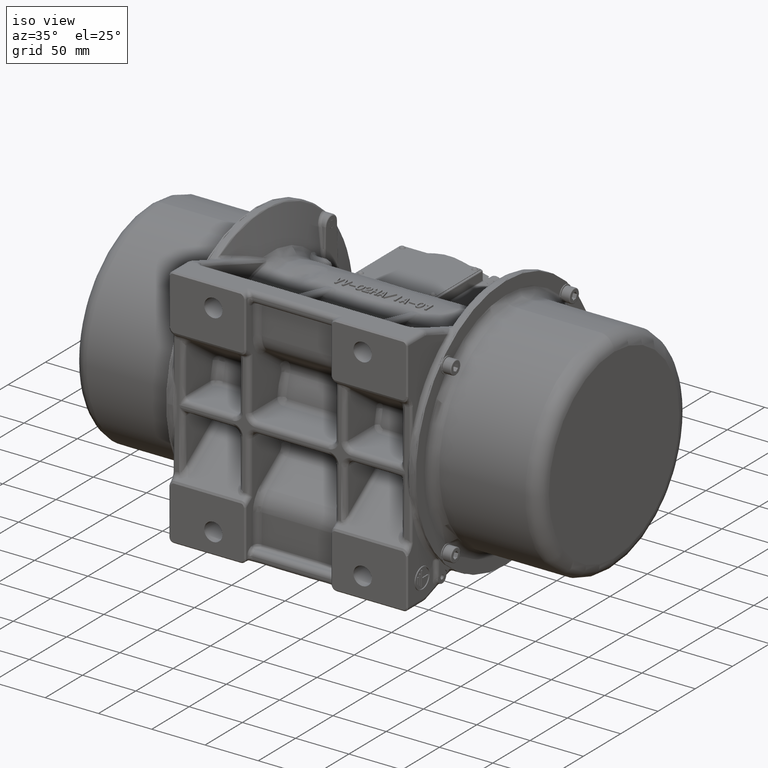
[diagram: clean part render]
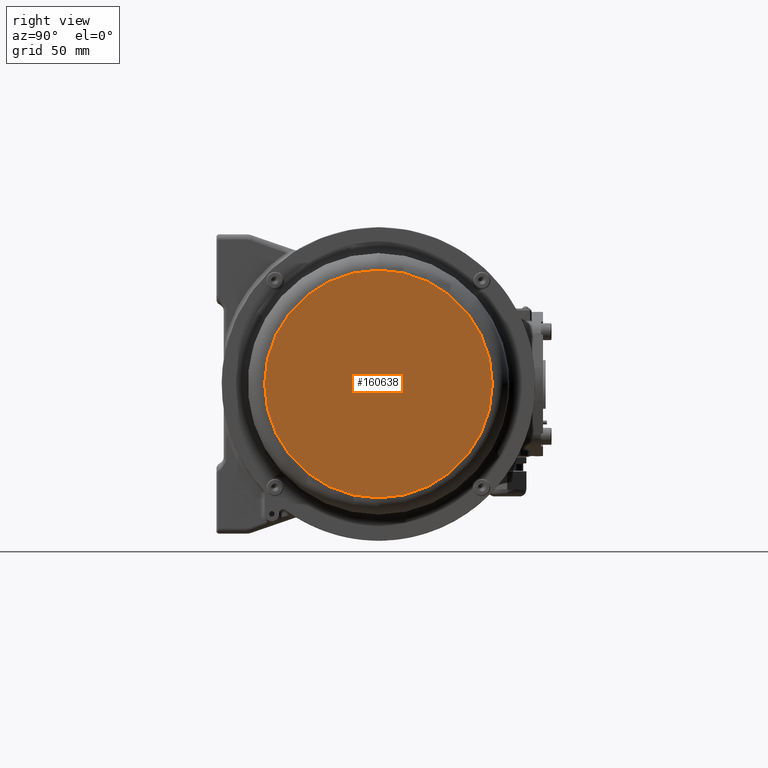
[diagram: tour spotlight — one face highlighted and labeled with its STEP entity id]
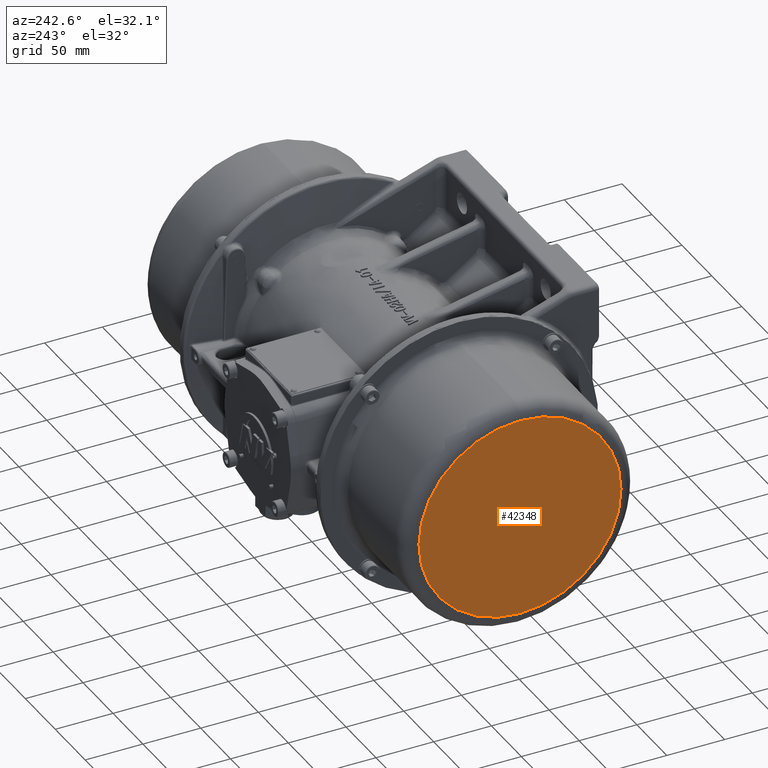
[diagram: tour spotlight — one face highlighted and labeled with its STEP entity id]
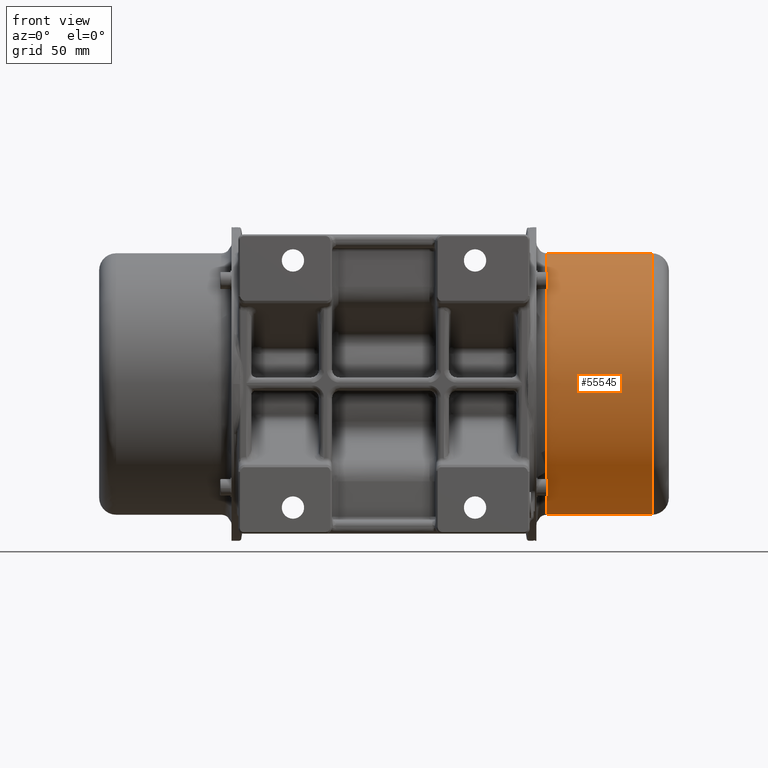
[diagram: tour spotlight — one face highlighted and labeled with its STEP entity id]
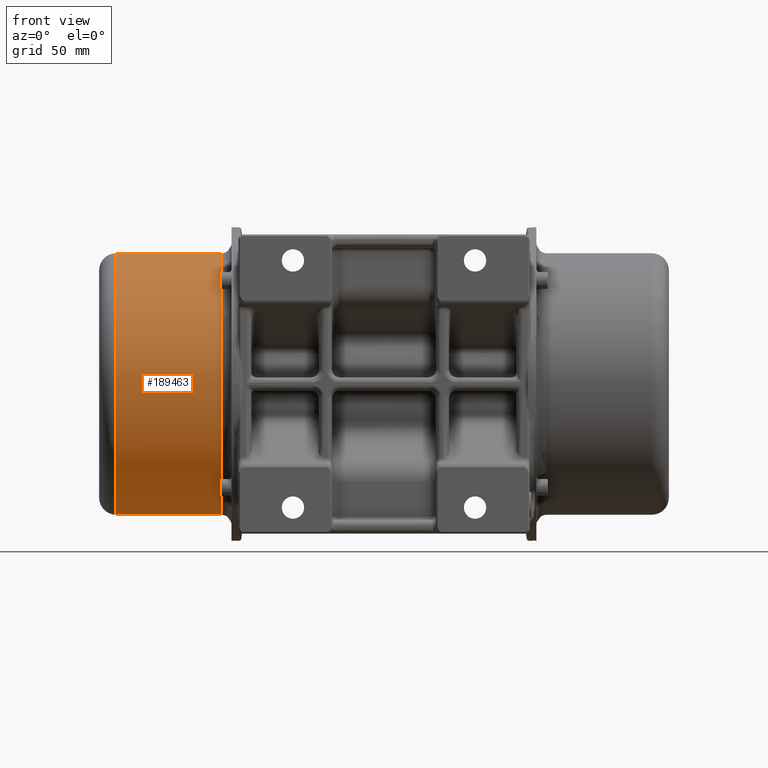
[diagram: tour spotlight — one face highlighted and labeled with its STEP entity id]
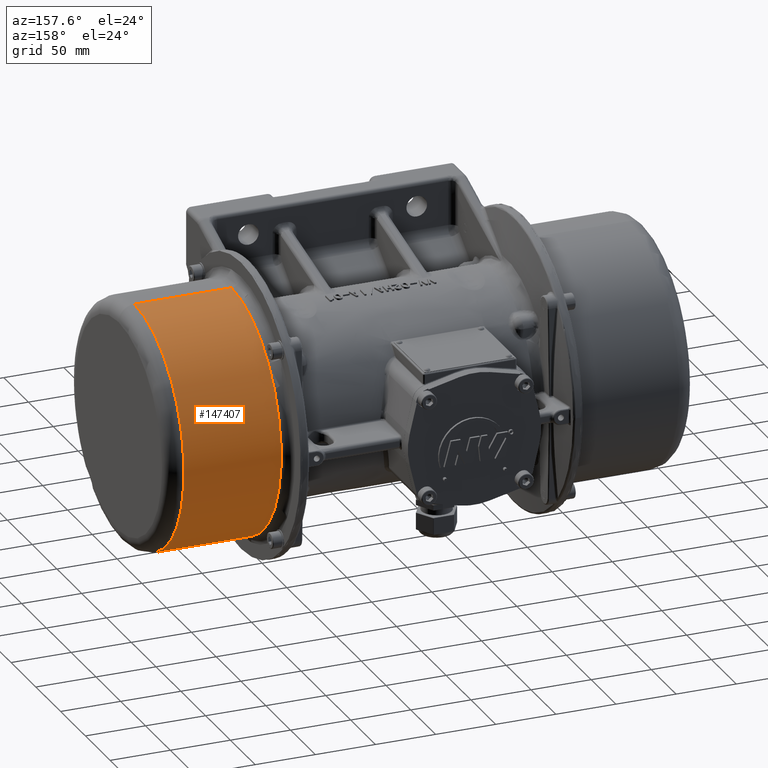
[diagram: tour spotlight — one face highlighted and labeled with its STEP entity id]
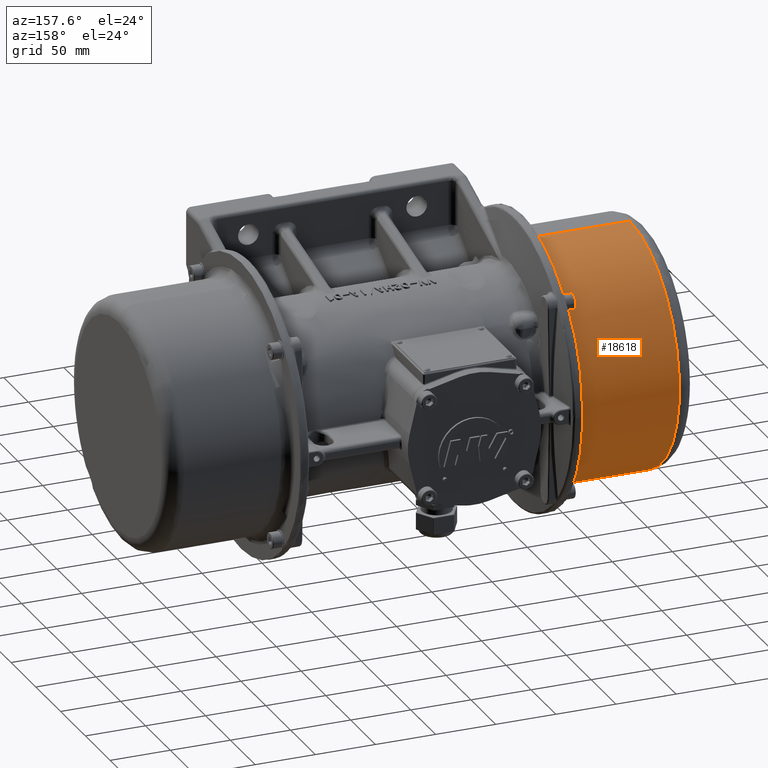
[diagram: tour spotlight — one face highlighted and labeled with its STEP entity id]
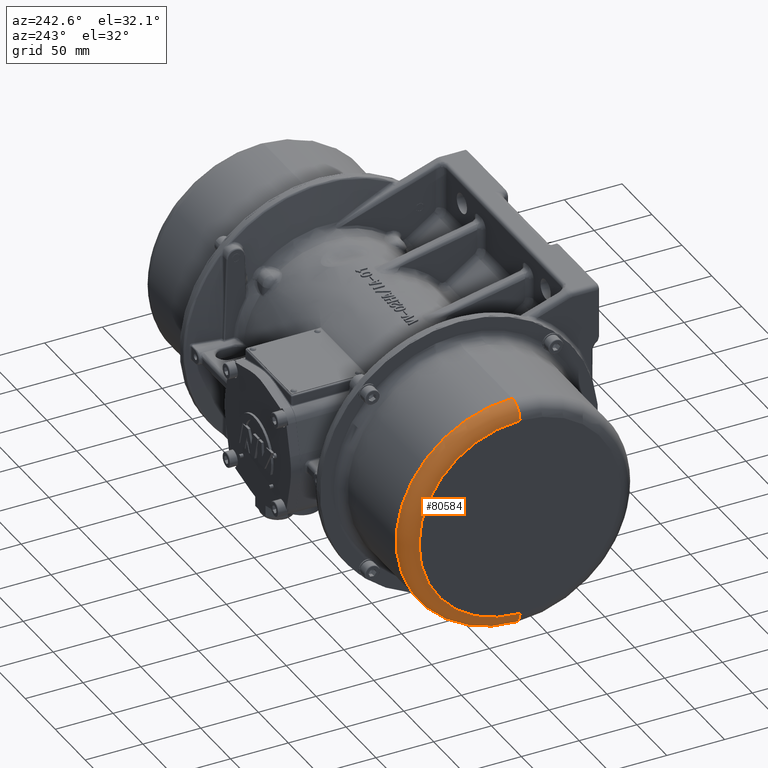
[diagram: tour spotlight — one face highlighted and labeled with its STEP entity id]
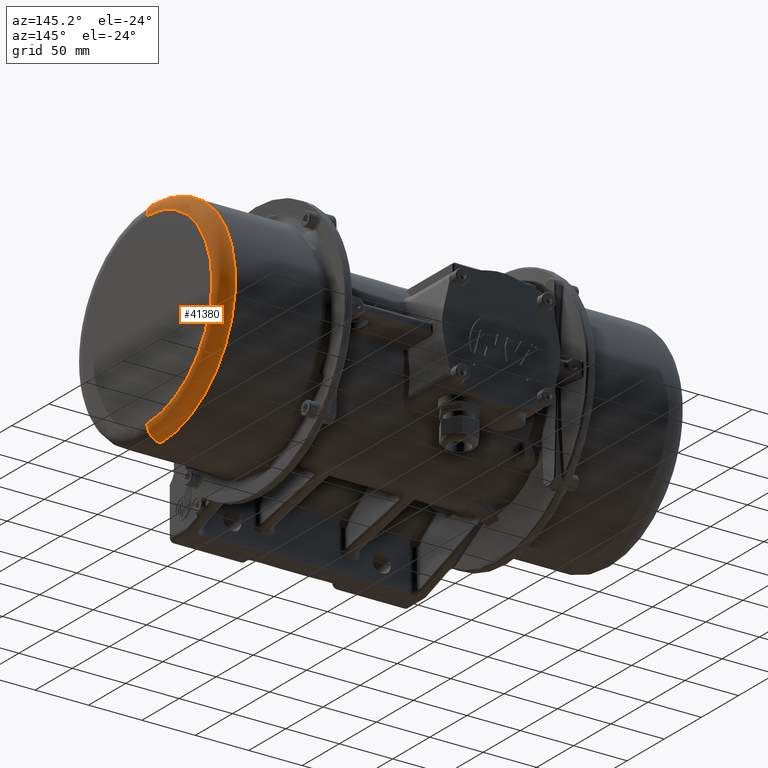
[diagram: tour spotlight — one face highlighted and labeled with its STEP entity id]
A machine part: a face-by-face anatomy tour. The part has 3000 B-rep faces; the first image is the clean iso view, then the 8 largest visible faces are spotlighted one at a time (largest first), each with its STEP entity span.

Face 1 — right view, entity #160638. In plain terms, the highlighted planar face has unit normal (-1, 0, 0).
Definition (entity closure, byte-faithful):
#1987 = DIRECTION ( 'NONE',  ( 0.0000000000000000000, 0.0000000000000000000, -1.000000000000000000 ) ) ;
#13158 = CARTESIAN_POINT ( 'NONE',  ( 213.6420498956300100, 36.10843668353454900, -4.192510086021179300E-014 ) ) ;
#18146 = CIRCLE ( 'NONE', #154059, 87.50000000000000000 ) ;
#28654 = DIRECTION ( 'NONE',  ( 0.0000000000000000000, 0.0000000000000000000, -1.000000000000000000 ) ) ;
#33036 = DIRECTION ( 'NONE',  ( -1.000000000000000000, 1.714077650504639900E-032, 2.832402298722609900E-018 ) ) ;
#36808 = CARTESIAN_POINT ( 'NONE',  ( 213.6420498956300100, 36.10843668353454900, -87.50000000000004300 ) ) ;
#57370 = ORIENTED_EDGE ( 'NONE', *, *, #120454, .F. ) ;
#61857 = AXIS2_PLACEMENT_3D ( 'NONE', #13158, #120517, #28654 ) ;
#66470 = VERTEX_POINT ( 'NONE', #95535 ) ;
#70409 = FACE_OUTER_BOUND ( 'NONE', #154070, .T. ) ;
#93844 = DIRECTION ( 'NONE',  ( -1.000000000000000000, 1.714077650504639900E-032, 2.832402298722609900E-018 ) ) ;
#95535 = CARTESIAN_POINT ( 'NONE',  ( 213.6420498956300100, 36.10843668353453500, 87.49999999999995700 ) ) ;
#108837 = PLANE ( 'NONE',  #180337 ) ;
#120454 = EDGE_CURVE ( 'NONE', #126712, #66470, #173022, .T. ) ;
#120517 = DIRECTION ( 'NONE',  ( -1.000000000000000000, 1.714077650504639900E-032, 2.832402298722609900E-018 ) ) ;
#123889 = ORIENTED_EDGE ( 'NONE', *, *, #135889, .F. ) ;
#124933 = CARTESIAN_POINT ( 'NONE',  ( 213.6420498956300100, -51.39156331646550100, -4.192510086021179300E-014 ) ) ;
#126712 = VERTEX_POINT ( 'NONE', #36808 ) ;
#135889 = EDGE_CURVE ( 'NONE', #66470, #126712, #18146, .T. ) ;
#140287 = DIRECTION ( 'NONE',  ( -2.832402298722609900E-018, 0.0000000000000000000, -1.000000000000000000 ) ) ;
#154059 = AXIS2_PLACEMENT_3D ( 'NONE', #185716, #93844, #1987 ) ;
#154070 = EDGE_LOOP ( 'NONE', ( #57370, #123889 ) ) ;
#160638 = ADVANCED_FACE ( 'NONE', ( #70409 ), #108837, .F. ) ;
#173022 = CIRCLE ( 'NONE', #61857, 87.50000000000000000 ) ;
#180337 = AXIS2_PLACEMENT_3D ( 'NONE', #124933, #33036, #140287 ) ;
#185716 = CARTESIAN_POINT ( 'NONE',  ( 213.6420498956300100, 36.10843668353454900, -4.192510086021179300E-014 ) ) ;

Face 2 — auxiliary view, entity #42348. In plain terms, the highlighted planar face has unit normal (1, -0, 0).
Definition (entity closure, byte-faithful):
#2920 = EDGE_CURVE ( 'NONE', #79177, #60389, #41744, .T. ) ;
#10515 = DIRECTION ( 'NONE',  ( 1.000000000000000000, -6.427852285303269600E-024, 1.572670343229675200E-024 ) ) ;
#23392 = EDGE_CURVE ( 'NONE', #60389, #79177, #56491, .T. ) ;
#30877 = ORIENTED_EDGE ( 'NONE', *, *, #23392, .F. ) ;
#39372 = CARTESIAN_POINT ( 'NONE',  ( -224.3579501043700200, -51.39156331646539400, -6.824402156112609400E-013 ) ) ;
#41744 = CIRCLE ( 'NONE', #193924, 87.50000000000000000 ) ;
#42324 = CARTESIAN_POINT ( 'NONE',  ( -224.3579501043700200, 36.10843668353388800, 87.49999999999997200 ) ) ;
#42348 = ADVANCED_FACE ( 'NONE', ( #54686 ), #54125, .F. ) ;
#54125 = PLANE ( 'NONE',  #91747 ) ;
#54686 = FACE_OUTER_BOUND ( 'NONE', #57516, .T. ) ;
#54789 = DIRECTION ( 'NONE',  ( -1.572670343229725100E-024, -7.521760991835440300E-015, 1.000000000000000000 ) ) ;
#56491 = CIRCLE ( 'NONE', #154249, 87.50000000000000000 ) ;
#57516 = EDGE_LOOP ( 'NONE', ( #30877, #178146 ) ) ;
#60389 = VERTEX_POINT ( 'NONE', #42324 ) ;
#79177 = VERTEX_POINT ( 'NONE', #163755 ) ;
#88250 = CARTESIAN_POINT ( 'NONE',  ( -224.3579501043700200, 36.10843668353454900, -2.428612882566034800E-014 ) ) ;
#91747 = AXIS2_PLACEMENT_3D ( 'NONE', #39372, #146659, #54789 ) ;
#102441 = CARTESIAN_POINT ( 'NONE',  ( -224.3579501043700200, 36.10843668353454900, -2.428612882566034800E-014 ) ) ;
#103646 = DIRECTION ( 'NONE',  ( 0.0000000000000000000, -7.533656238527848400E-015, 1.000000000000000000 ) ) ;
#117851 = DIRECTION ( 'NONE',  ( 0.0000000000000000000, -7.533656238527848400E-015, 1.000000000000000000 ) ) ;
#146659 = DIRECTION ( 'NONE',  ( 1.000000000000000000, -6.427852285303269600E-024, 1.572670343229676800E-024 ) ) ;
#154249 = AXIS2_PLACEMENT_3D ( 'NONE', #88250, #195565, #103646 ) ;
#163755 = CARTESIAN_POINT ( 'NONE',  ( -224.3579501043700200, 36.10843668353524500, -87.50000000000002800 ) ) ;
#178146 = ORIENTED_EDGE ( 'NONE', *, *, #2920, .F. ) ;
#193924 = AXIS2_PLACEMENT_3D ( 'NONE', #102441, #10515, #117851 ) ;
#195565 = DIRECTION ( 'NONE',  ( 1.000000000000000000, -6.427852285303269600E-024, 1.572670343229675200E-024 ) ) ;

Face 3 — front view, entity #55545. In plain terms, the highlighted cylindrical surface (partial cylindrical patch) has radius 100.5 mm, axis along (-1, 0, 0).
Definition (entity closure, byte-faithful):
#763 = EDGE_LOOP ( 'NONE', ( #59660, #109641, #89755, #77764 ) ) ;
#7593 = DIRECTION ( 'NONE',  ( 0.0000000000000000000, 0.0000000000000000000, -1.000000000000000000 ) ) ;
#8847 = DIRECTION ( 'NONE',  ( 0.0000000000000000000, 0.0000000000000000000, -1.000000000000000000 ) ) ;
#22380 = DIRECTION ( 'NONE',  ( -1.000000000000000000, 1.714077650504639900E-032, 2.832402298722609900E-018 ) ) ;
#31782 = DIRECTION ( 'NONE',  ( -1.000000000000000000, 1.714077650504639900E-032, 2.832402298722609900E-018 ) ) ;
#45259 = VECTOR ( 'NONE', #195251, 1000.000000000000000 ) ;
#48273 = CYLINDRICAL_SURFACE ( 'NONE', #105571, 100.5000000000000000 ) ;
#55545 = ADVANCED_FACE ( 'NONE', ( #108376 ), #48273, .T. ) ;
#59660 = ORIENTED_EDGE ( 'NONE', *, *, #182082, .T. ) ;
#77764 = ORIENTED_EDGE ( 'NONE', *, *, #185573, .F. ) ;
#87939 = CARTESIAN_POINT ( 'NONE',  ( 96.12603598278089100, 36.10843668353453500, 100.4999999999999600 ) ) ;
#89755 = ORIENTED_EDGE ( 'NONE', *, *, #132094, .F. ) ;
#98504 = AXIS2_PLACEMENT_3D ( 'NONE', #192693, #100788, #8847 ) ;
#100788 = DIRECTION ( 'NONE',  ( -1.000000000000000000, 1.714077650504639900E-032, 2.832402298722609900E-018 ) ) ;
#105571 = AXIS2_PLACEMENT_3D ( 'NONE', #129703, #22380, #7593 ) ;
#106063 = CARTESIAN_POINT ( 'NONE',  ( 96.12603598278089100, 36.10843668353454900, -100.5000000000000400 ) ) ;
#108376 = FACE_OUTER_BOUND ( 'NONE', #763, .T. ) ;
#109641 = ORIENTED_EDGE ( 'NONE', *, *, #132498, .T. ) ;
#114759 = VERTEX_POINT ( 'NONE', #125247 ) ;
#121471 = DIRECTION ( 'NONE',  ( -1.000000000000000000, 1.714077650504639900E-032, 2.832402298722609900E-018 ) ) ;
#122096 = LINE ( 'NONE', #87939, #45259 ) ;
#123657 = CARTESIAN_POINT ( 'NONE',  ( 119.8420498956300100, 36.10843668353454900, -4.165942152459159300E-014 ) ) ;
#125247 = CARTESIAN_POINT ( 'NONE',  ( 200.6420498956300100, 36.10843668353453500, 100.4999999999999600 ) ) ;
#129703 = CARTESIAN_POINT ( 'NONE',  ( 96.12603598278089100, 36.10843668353454900, -4.159224823226835100E-014 ) ) ;
#132094 = EDGE_CURVE ( 'NONE', #152985, #196072, #175020, .T. ) ;
#132498 = EDGE_CURVE ( 'NONE', #114759, #196072, #122096, .T. ) ;
#133450 = CARTESIAN_POINT ( 'NONE',  ( 119.8420498956300100, 36.10843668353454900, -100.5000000000000400 ) ) ;
#139068 = DIRECTION ( 'NONE',  ( 0.0000000000000000000, 0.0000000000000000000, -1.000000000000000000 ) ) ;
#139376 = CIRCLE ( 'NONE', #98504, 100.5000000000000000 ) ;
#149874 = AXIS2_PLACEMENT_3D ( 'NONE', #123657, #31782, #139068 ) ;
#152985 = VERTEX_POINT ( 'NONE', #133450 ) ;
#153369 = CARTESIAN_POINT ( 'NONE',  ( 119.8420498956300100, 36.10843668353453500, 100.4999999999999700 ) ) ;
#157046 = VERTEX_POINT ( 'NONE', #197470 ) ;
#172757 = VECTOR ( 'NONE', #121471, 1000.000000000000000 ) ;
#175020 = CIRCLE ( 'NONE', #149874, 100.5000000000000000 ) ;
#177530 = LINE ( 'NONE', #106063, #172757 ) ;
#182082 = EDGE_CURVE ( 'NONE', #157046, #114759, #139376, .T. ) ;
#185573 = EDGE_CURVE ( 'NONE', #157046, #152985, #177530, .T. ) ;
#192693 = CARTESIAN_POINT ( 'NONE',  ( 200.6420498956300100, 36.10843668353454900, -4.188827963032839400E-014 ) ) ;
#195251 = DIRECTION ( 'NONE',  ( -1.000000000000000000, 1.714077650504639900E-032, 2.832402298722609900E-018 ) ) ;
#196072 = VERTEX_POINT ( 'NONE', #153369 ) ;
#197470 = CARTESIAN_POINT ( 'NONE',  ( 200.6420498956300100, 36.10843668353454900, -100.5000000000000400 ) ) ;

Face 4 — front view, entity #189463. In plain terms, the highlighted cylindrical surface (partial cylindrical patch) has radius 100.5 mm, axis along (1, -0, 0).
Definition (entity closure, byte-faithful):
#13397 = AXIS2_PLACEMENT_3D ( 'NONE', #66911, #174200, #82290 ) ;
#15276 = FACE_OUTER_BOUND ( 'NONE', #49539, .T. ) ;
#16917 = VECTOR ( 'NONE', #164453, 1000.000000000000000 ) ;
#17263 = EDGE_CURVE ( 'NONE', #128254, #43192, #69595, .T. ) ;
#19060 = VERTEX_POINT ( 'NONE', #158795 ) ;
#19648 = CARTESIAN_POINT ( 'NONE',  ( -130.5579501043699800, 36.10843668353531700, -100.5000000000000300 ) ) ;
#24130 = ORIENTED_EDGE ( 'NONE', *, *, #56483, .F. ) ;
#32054 = CYLINDRICAL_SURFACE ( 'NONE', #131015, 100.5000000000000000 ) ;
#41992 = AXIS2_PLACEMENT_3D ( 'NONE', #78036, #185357, #93490 ) ;
#43192 = VERTEX_POINT ( 'NONE', #119623 ) ;
#49539 = EDGE_LOOP ( 'NONE', ( #64299, #141984, #64183, #24130 ) ) ;
#53266 = CARTESIAN_POINT ( 'NONE',  ( -106.8419361915210000, 36.10843668353379600, 100.4999999999999700 ) ) ;
#56483 = EDGE_CURVE ( 'NONE', #128254, #19060, #103308, .T. ) ;
#64183 = ORIENTED_EDGE ( 'NONE', *, *, #181680, .F. ) ;
#64299 = ORIENTED_EDGE ( 'NONE', *, *, #17263, .T. ) ;
#66911 = CARTESIAN_POINT ( 'NONE',  ( -130.5579501043699800, 36.10843668353454900, -2.428612867814384800E-014 ) ) ;
#69595 = CIRCLE ( 'NONE', #41992, 100.5000000000000000 ) ;
#77050 = CIRCLE ( 'NONE', #13397, 100.5000000000000000 ) ;
#78036 = CARTESIAN_POINT ( 'NONE',  ( -211.3579501043699900, 36.10843668353454900, -2.428612880521564800E-014 ) ) ;
#79611 = CARTESIAN_POINT ( 'NONE',  ( -106.8419361915210000, 36.10843668353454900, -2.428612864084639700E-014 ) ) ;
#80270 = DIRECTION ( 'NONE',  ( 0.0000000000000000000, -7.525765527620775800E-015, 1.000000000000000000 ) ) ;
#82290 = DIRECTION ( 'NONE',  ( 0.0000000000000000000, -7.525765527620775800E-015, 1.000000000000000000 ) ) ;
#93490 = DIRECTION ( 'NONE',  ( 0.0000000000000000000, -7.525765527620775800E-015, 1.000000000000000000 ) ) ;
#103308 = LINE ( 'NONE', #53266, #16917 ) ;
#116522 = CARTESIAN_POINT ( 'NONE',  ( -211.3579501043699900, 36.10843668353379600, 100.4999999999999700 ) ) ;
#119623 = CARTESIAN_POINT ( 'NONE',  ( -211.3579501043699900, 36.10843668353528800, -100.5000000000000300 ) ) ;
#128254 = VERTEX_POINT ( 'NONE', #116522 ) ;
#131015 = AXIS2_PLACEMENT_3D ( 'NONE', #79611, #186953, #80270 ) ;
#133410 = CARTESIAN_POINT ( 'NONE',  ( -106.8419361915210000, 36.10843668353528800, -100.5000000000000300 ) ) ;
#135784 = EDGE_CURVE ( 'NONE', #43192, #144332, #186178, .T. ) ;
#141984 = ORIENTED_EDGE ( 'NONE', *, *, #135784, .T. ) ;
#144332 = VERTEX_POINT ( 'NONE', #19648 ) ;
#145348 = VECTOR ( 'NONE', #164265, 1000.000000000000000 ) ;
#158795 = CARTESIAN_POINT ( 'NONE',  ( -130.5579501043699800, 36.10843668353379600, 100.4999999999999700 ) ) ;
#164265 = DIRECTION ( 'NONE',  ( 1.000000000000000000, -6.427852285303269600E-024, 1.572670343229675200E-024 ) ) ;
#164453 = DIRECTION ( 'NONE',  ( 1.000000000000000000, -6.427852285303269600E-024, 1.572670343229675200E-024 ) ) ;
#174200 = DIRECTION ( 'NONE',  ( 1.000000000000000000, -6.427852285303269600E-024, 1.572670343229675200E-024 ) ) ;
#181680 = EDGE_CURVE ( 'NONE', #19060, #144332, #77050, .T. ) ;
#185357 = DIRECTION ( 'NONE',  ( 1.000000000000000000, -6.427852285303269600E-024, 1.572670343229675200E-024 ) ) ;
#186178 = LINE ( 'NONE', #133410, #145348 ) ;
#186953 = DIRECTION ( 'NONE',  ( 1.000000000000000000, -6.427852285303269600E-024, 1.572670343229675200E-024 ) ) ;
#189463 = ADVANCED_FACE ( 'NONE', ( #15276 ), #32054, .T. ) ;

Face 5 — auxiliary view, entity #147407. In plain terms, the highlighted cylindrical surface (partial cylindrical patch) has radius 100.5 mm, axis along (-1, 0, 0).
Definition (entity closure, byte-faithful):
#1806 = ORIENTED_EDGE ( 'NONE', *, *, #192208, .T. ) ;
#3166 = DIRECTION ( 'NONE',  ( -1.000000000000000000, 1.714077650504639900E-032, 2.832402298722609900E-018 ) ) ;
#3889 = EDGE_LOOP ( 'NONE', ( #43640, #1806, #88145, #148310 ) ) ;
#4618 = CYLINDRICAL_SURFACE ( 'NONE', #189756, 100.5000000000000000 ) ;
#19618 = CARTESIAN_POINT ( 'NONE',  ( 200.6420498956300100, 36.10843668353454900, -4.188827963032839400E-014 ) ) ;
#35046 = DIRECTION ( 'NONE',  ( 0.0000000000000000000, 0.0000000000000000000, -1.000000000000000000 ) ) ;
#43640 = ORIENTED_EDGE ( 'NONE', *, *, #132498, .F. ) ;
#45259 = VECTOR ( 'NONE', #195251, 1000.000000000000000 ) ;
#70791 = AXIS2_PLACEMENT_3D ( 'NONE', #19618, #126924, #35046 ) ;
#72379 = CARTESIAN_POINT ( 'NONE',  ( 96.12603598278089100, 36.10843668353454900, -4.159224823226835100E-014 ) ) ;
#81834 = CIRCLE ( 'NONE', #189781, 100.5000000000000000 ) ;
#87939 = CARTESIAN_POINT ( 'NONE',  ( 96.12603598278089100, 36.10843668353453500, 100.4999999999999600 ) ) ;
#88145 = ORIENTED_EDGE ( 'NONE', *, *, #185573, .T. ) ;
#95041 = CARTESIAN_POINT ( 'NONE',  ( 119.8420498956300100, 36.10843668353454900, -4.165942152459159300E-014 ) ) ;
#100612 = FACE_OUTER_BOUND ( 'NONE', #3889, .T. ) ;
#102569 = DIRECTION ( 'NONE',  ( -1.000000000000000000, 1.714077650504639900E-032, 2.832402298722609900E-018 ) ) ;
#106063 = CARTESIAN_POINT ( 'NONE',  ( 96.12603598278089100, 36.10843668353454900, -100.5000000000000400 ) ) ;
#109930 = EDGE_CURVE ( 'NONE', #196072, #152985, #81834, .T. ) ;
#110482 = DIRECTION ( 'NONE',  ( 0.0000000000000000000, 0.0000000000000000000, -1.000000000000000000 ) ) ;
#114759 = VERTEX_POINT ( 'NONE', #125247 ) ;
#121471 = DIRECTION ( 'NONE',  ( -1.000000000000000000, 1.714077650504639900E-032, 2.832402298722609900E-018 ) ) ;
#122096 = LINE ( 'NONE', #87939, #45259 ) ;
#122725 = CIRCLE ( 'NONE', #70791, 100.5000000000000000 ) ;
#125247 = CARTESIAN_POINT ( 'NONE',  ( 200.6420498956300100, 36.10843668353453500, 100.4999999999999600 ) ) ;
#126924 = DIRECTION ( 'NONE',  ( -1.000000000000000000, 1.714077650504639900E-032, 2.832402298722609900E-018 ) ) ;
#132498 = EDGE_CURVE ( 'NONE', #114759, #196072, #122096, .T. ) ;
#133450 = CARTESIAN_POINT ( 'NONE',  ( 119.8420498956300100, 36.10843668353454900, -100.5000000000000400 ) ) ;
#134042 = DIRECTION ( 'NONE',  ( 0.0000000000000000000, 0.0000000000000000000, -1.000000000000000000 ) ) ;
#147407 = ADVANCED_FACE ( 'NONE', ( #100612 ), #4618, .T. ) ;
#148310 = ORIENTED_EDGE ( 'NONE', *, *, #109930, .F. ) ;
#152985 = VERTEX_POINT ( 'NONE', #133450 ) ;
#153369 = CARTESIAN_POINT ( 'NONE',  ( 119.8420498956300100, 36.10843668353453500, 100.4999999999999700 ) ) ;
#157046 = VERTEX_POINT ( 'NONE', #197470 ) ;
#172757 = VECTOR ( 'NONE', #121471, 1000.000000000000000 ) ;
#177530 = LINE ( 'NONE', #106063, #172757 ) ;
#185573 = EDGE_CURVE ( 'NONE', #157046, #152985, #177530, .T. ) ;
#189756 = AXIS2_PLACEMENT_3D ( 'NONE', #72379, #102569, #134042 ) ;
#189781 = AXIS2_PLACEMENT_3D ( 'NONE', #95041, #3166, #110482 ) ;
#192208 = EDGE_CURVE ( 'NONE', #114759, #157046, #122725, .T. ) ;
#195251 = DIRECTION ( 'NONE',  ( -1.000000000000000000, 1.714077650504639900E-032, 2.832402298722609900E-018 ) ) ;
#196072 = VERTEX_POINT ( 'NONE', #153369 ) ;
#197470 = CARTESIAN_POINT ( 'NONE',  ( 200.6420498956300100, 36.10843668353454900, -100.5000000000000400 ) ) ;

Face 6 — auxiliary view, entity #18618. In plain terms, the highlighted cylindrical surface (partial cylindrical patch) has radius 100.5 mm, axis along (1, -0, 0).
Definition (entity closure, byte-faithful):
#1414 = CIRCLE ( 'NONE', #27655, 100.5000000000000000 ) ;
#16097 = ORIENTED_EDGE ( 'NONE', *, *, #41823, .T. ) ;
#16917 = VECTOR ( 'NONE', #164453, 1000.000000000000000 ) ;
#18618 = ADVANCED_FACE ( 'NONE', ( #38463 ), #59991, .T. ) ;
#19060 = VERTEX_POINT ( 'NONE', #158795 ) ;
#19648 = CARTESIAN_POINT ( 'NONE',  ( -130.5579501043699800, 36.10843668353531700, -100.5000000000000300 ) ) ;
#27655 = AXIS2_PLACEMENT_3D ( 'NONE', #172278, #80383, #187721 ) ;
#33891 = AXIS2_PLACEMENT_3D ( 'NONE', #155727, #63860, #171147 ) ;
#38463 = FACE_OUTER_BOUND ( 'NONE', #186203, .T. ) ;
#39610 = ORIENTED_EDGE ( 'NONE', *, *, #56483, .T. ) ;
#41823 = EDGE_CURVE ( 'NONE', #43192, #128254, #138789, .T. ) ;
#43192 = VERTEX_POINT ( 'NONE', #119623 ) ;
#53266 = CARTESIAN_POINT ( 'NONE',  ( -106.8419361915210000, 36.10843668353379600, 100.4999999999999700 ) ) ;
#56483 = EDGE_CURVE ( 'NONE', #128254, #19060, #103308, .T. ) ;
#59991 = CYLINDRICAL_SURFACE ( 'NONE', #157823, 100.5000000000000000 ) ;
#63860 = DIRECTION ( 'NONE',  ( 1.000000000000000000, -6.427852285303269600E-024, 1.572670343229675200E-024 ) ) ;
#64284 = EDGE_CURVE ( 'NONE', #144332, #19060, #1414, .T. ) ;
#72505 = DIRECTION ( 'NONE',  ( 1.000000000000000000, -6.427852285303269600E-024, 1.572670343229675200E-024 ) ) ;
#80383 = DIRECTION ( 'NONE',  ( 1.000000000000000000, -6.427852285303269600E-024, 1.572670343229675200E-024 ) ) ;
#103308 = LINE ( 'NONE', #53266, #16917 ) ;
#115501 = CARTESIAN_POINT ( 'NONE',  ( -106.8419361915210000, 36.10843668353454900, -2.428612864084639700E-014 ) ) ;
#116522 = CARTESIAN_POINT ( 'NONE',  ( -211.3579501043699900, 36.10843668353379600, 100.4999999999999700 ) ) ;
#119623 = CARTESIAN_POINT ( 'NONE',  ( -211.3579501043699900, 36.10843668353528800, -100.5000000000000300 ) ) ;
#127381 = ORIENTED_EDGE ( 'NONE', *, *, #135784, .F. ) ;
#128254 = VERTEX_POINT ( 'NONE', #116522 ) ;
#133410 = CARTESIAN_POINT ( 'NONE',  ( -106.8419361915210000, 36.10843668353528800, -100.5000000000000300 ) ) ;
#134170 = DIRECTION ( 'NONE',  ( 0.0000000000000000000, -7.525765527620775800E-015, 1.000000000000000000 ) ) ;
#135784 = EDGE_CURVE ( 'NONE', #43192, #144332, #186178, .T. ) ;
#138789 = CIRCLE ( 'NONE', #33891, 100.5000000000000000 ) ;
#144332 = VERTEX_POINT ( 'NONE', #19648 ) ;
#145348 = VECTOR ( 'NONE', #164265, 1000.000000000000000 ) ;
#155727 = CARTESIAN_POINT ( 'NONE',  ( -211.3579501043699900, 36.10843668353454900, -2.428612880521564800E-014 ) ) ;
#156108 = ORIENTED_EDGE ( 'NONE', *, *, #64284, .F. ) ;
#157823 = AXIS2_PLACEMENT_3D ( 'NONE', #115501, #72505, #134170 ) ;
#158795 = CARTESIAN_POINT ( 'NONE',  ( -130.5579501043699800, 36.10843668353379600, 100.4999999999999700 ) ) ;
#164265 = DIRECTION ( 'NONE',  ( 1.000000000000000000, -6.427852285303269600E-024, 1.572670343229675200E-024 ) ) ;
#164453 = DIRECTION ( 'NONE',  ( 1.000000000000000000, -6.427852285303269600E-024, 1.572670343229675200E-024 ) ) ;
#171147 = DIRECTION ( 'NONE',  ( 0.0000000000000000000, -7.525765527620775800E-015, 1.000000000000000000 ) ) ;
#172278 = CARTESIAN_POINT ( 'NONE',  ( -130.5579501043699800, 36.10843668353454900, -2.428612867814384800E-014 ) ) ;
#186178 = LINE ( 'NONE', #133410, #145348 ) ;
#186203 = EDGE_LOOP ( 'NONE', ( #127381, #16097, #39610, #156108 ) ) ;
#187721 = DIRECTION ( 'NONE',  ( 0.0000000000000000000, -7.525765527620775800E-015, 1.000000000000000000 ) ) ;

Face 7 — auxiliary view, entity #80584. In plain terms, the highlighted toroidal blend (fillet) surface has major radius 87.5 mm and minor (blend) radius 13 mm.
Definition (entity closure, byte-faithful):
#2920 = EDGE_CURVE ( 'NONE', #79177, #60389, #41744, .T. ) ;
#10515 = DIRECTION ( 'NONE',  ( 1.000000000000000000, -6.427852285303269600E-024, 1.572670343229675200E-024 ) ) ;
#33891 = AXIS2_PLACEMENT_3D ( 'NONE', #155727, #63860, #171147 ) ;
#41349 = CARTESIAN_POINT ( 'NONE',  ( -211.3579501043699900, 36.10843668353388800, 87.49999999999997200 ) ) ;
#41744 = CIRCLE ( 'NONE', #193924, 87.50000000000000000 ) ;
#41823 = EDGE_CURVE ( 'NONE', #43192, #128254, #138789, .T. ) ;
#41989 = TOROIDAL_SURFACE ( 'NONE', #53296, 87.50000000000000000, 13.00000000000000000 ) ;
#42324 = CARTESIAN_POINT ( 'NONE',  ( -224.3579501043700200, 36.10843668353388800, 87.49999999999997200 ) ) ;
#43192 = VERTEX_POINT ( 'NONE', #119623 ) ;
#53296 = AXIS2_PLACEMENT_3D ( 'NONE', #107601, #169270, #77390 ) ;
#54553 = ORIENTED_EDGE ( 'NONE', *, *, #58957, .F. ) ;
#56777 = DIRECTION ( 'NONE',  ( 0.0000000000000000000, -7.472654973438555100E-015, 1.000000000000000000 ) ) ;
#58957 = EDGE_CURVE ( 'NONE', #79177, #43192, #191955, .T. ) ;
#60389 = VERTEX_POINT ( 'NONE', #42324 ) ;
#63153 = EDGE_CURVE ( 'NONE', #60389, #128254, #140721, .T. ) ;
#63860 = DIRECTION ( 'NONE',  ( 1.000000000000000000, -6.427852285303269600E-024, 1.572670343229675200E-024 ) ) ;
#76472 = AXIS2_PLACEMENT_3D ( 'NONE', #41349, #148649, #56777 ) ;
#77390 = DIRECTION ( 'NONE',  ( -1.572670343229723700E-024, -7.525765527620775800E-015, 1.000000000000000000 ) ) ;
#79177 = VERTEX_POINT ( 'NONE', #163755 ) ;
#80584 = ADVANCED_FACE ( 'NONE', ( #178843 ), #41989, .T. ) ;
#82652 = AXIS2_PLACEMENT_3D ( 'NONE', #179134, #87290, #194629 ) ;
#85229 = ORIENTED_EDGE ( 'NONE', *, *, #63153, .T. ) ;
#87290 = DIRECTION ( 'NONE',  ( -6.427852285303257800E-024, -1.000000000000000000, -7.399296311920705100E-015 ) ) ;
#97972 = EDGE_LOOP ( 'NONE', ( #54553, #177583, #85229, #190865 ) ) ;
#102441 = CARTESIAN_POINT ( 'NONE',  ( -224.3579501043700200, 36.10843668353454900, -2.428612882566034800E-014 ) ) ;
#107601 = CARTESIAN_POINT ( 'NONE',  ( -211.3579501043699900, 36.10843668353454900, -2.428612880521564800E-014 ) ) ;
#116522 = CARTESIAN_POINT ( 'NONE',  ( -211.3579501043699900, 36.10843668353379600, 100.4999999999999700 ) ) ;
#117851 = DIRECTION ( 'NONE',  ( 0.0000000000000000000, -7.533656238527848400E-015, 1.000000000000000000 ) ) ;
#119623 = CARTESIAN_POINT ( 'NONE',  ( -211.3579501043699900, 36.10843668353528800, -100.5000000000000300 ) ) ;
#128254 = VERTEX_POINT ( 'NONE', #116522 ) ;
#138789 = CIRCLE ( 'NONE', #33891, 100.5000000000000000 ) ;
#140721 = CIRCLE ( 'NONE', #76472, 12.99999999999999800 ) ;
#148649 = DIRECTION ( 'NONE',  ( 6.427852285303257800E-024, 1.000000000000000000, 7.521760991835440300E-015 ) ) ;
#155727 = CARTESIAN_POINT ( 'NONE',  ( -211.3579501043699900, 36.10843668353454900, -2.428612880521564800E-014 ) ) ;
#163755 = CARTESIAN_POINT ( 'NONE',  ( -224.3579501043700200, 36.10843668353524500, -87.50000000000002800 ) ) ;
#169270 = DIRECTION ( 'NONE',  ( 1.000000000000000000, -6.427852285303269600E-024, 1.572670343229675200E-024 ) ) ;
#171147 = DIRECTION ( 'NONE',  ( 0.0000000000000000000, -7.525765527620775800E-015, 1.000000000000000000 ) ) ;
#177583 = ORIENTED_EDGE ( 'NONE', *, *, #2920, .T. ) ;
#178843 = FACE_OUTER_BOUND ( 'NONE', #97972, .T. ) ;
#179134 = CARTESIAN_POINT ( 'NONE',  ( -211.3579501043699900, 36.10843668353519600, -87.50000000000002800 ) ) ;
#190865 = ORIENTED_EDGE ( 'NONE', *, *, #41823, .F. ) ;
#191955 = CIRCLE ( 'NONE', #82652, 12.99999999999999800 ) ;
#193924 = AXIS2_PLACEMENT_3D ( 'NONE', #102441, #10515, #117851 ) ;
#194629 = DIRECTION ( 'NONE',  ( 0.0000000000000000000, 7.472654973438555100E-015, -1.000000000000000000 ) ) ;

Face 8 — auxiliary view, entity #41380. In plain terms, the highlighted toroidal blend (fillet) surface has major radius 87.5 mm and minor (blend) radius 13 mm.
Definition (entity closure, byte-faithful):
#1987 = DIRECTION ( 'NONE',  ( 0.0000000000000000000, 0.0000000000000000000, -1.000000000000000000 ) ) ;
#2368 = DIRECTION ( 'NONE',  ( -1.000000000000000000, 1.714077650504639900E-032, 2.832402298722609900E-018 ) ) ;
#6508 = DIRECTION ( 'NONE',  ( -1.000000000000000000, 0.0000000000000000000, 0.0000000000000000000 ) ) ;
#18146 = CIRCLE ( 'NONE', #154059, 87.50000000000000000 ) ;
#19618 = CARTESIAN_POINT ( 'NONE',  ( 200.6420498956300100, 36.10843668353454900, -4.188827963032839400E-014 ) ) ;
#34733 = CIRCLE ( 'NONE', #171923, 13.00000000000001100 ) ;
#35046 = DIRECTION ( 'NONE',  ( 0.0000000000000000000, 0.0000000000000000000, -1.000000000000000000 ) ) ;
#36808 = CARTESIAN_POINT ( 'NONE',  ( 213.6420498956300100, 36.10843668353454900, -87.50000000000004300 ) ) ;
#38843 = ORIENTED_EDGE ( 'NONE', *, *, #68813, .T. ) ;
#41380 = ADVANCED_FACE ( 'NONE', ( #54872 ), #81282, .T. ) ;
#50950 = AXIS2_PLACEMENT_3D ( 'NONE', #70826, #178128, #86275 ) ;
#54872 = FACE_OUTER_BOUND ( 'NONE', #199074, .T. ) ;
#66470 = VERTEX_POINT ( 'NONE', #95535 ) ;
#68813 = EDGE_CURVE ( 'NONE', #126712, #157046, #34733, .T. ) ;
#70791 = AXIS2_PLACEMENT_3D ( 'NONE', #19618, #126924, #35046 ) ;
#70826 = CARTESIAN_POINT ( 'NONE',  ( 200.6420498956300100, 36.10843668353453500, 87.49999999999995700 ) ) ;
#76042 = CIRCLE ( 'NONE', #50950, 12.99999999999999800 ) ;
#81282 = TOROIDAL_SURFACE ( 'NONE', #119890, 87.50000000000000000, 13.00000000000000000 ) ;
#84819 = EDGE_CURVE ( 'NONE', #66470, #114759, #76042, .T. ) ;
#86275 = DIRECTION ( 'NONE',  ( 0.0000000000000000000, 0.0000000000000000000, -1.000000000000000000 ) ) ;
#93844 = DIRECTION ( 'NONE',  ( -1.000000000000000000, 1.714077650504639900E-032, 2.832402298722609900E-018 ) ) ;
#95535 = CARTESIAN_POINT ( 'NONE',  ( 213.6420498956300100, 36.10843668353453500, 87.49999999999995700 ) ) ;
#98430 = DIRECTION ( 'NONE',  ( 1.714077650504639900E-032, 1.000000000000000000, -4.854957477478392200E-050 ) ) ;
#102497 = ORIENTED_EDGE ( 'NONE', *, *, #84819, .F. ) ;
#109644 = DIRECTION ( 'NONE',  ( -2.832402298722609900E-018, 4.854957477478392200E-050, -1.000000000000000000 ) ) ;
#114759 = VERTEX_POINT ( 'NONE', #125247 ) ;
#119890 = AXIS2_PLACEMENT_3D ( 'NONE', #139785, #2368, #109644 ) ;
#122725 = CIRCLE ( 'NONE', #70791, 100.5000000000000000 ) ;
#125247 = CARTESIAN_POINT ( 'NONE',  ( 200.6420498956300100, 36.10843668353453500, 100.4999999999999600 ) ) ;
#126712 = VERTEX_POINT ( 'NONE', #36808 ) ;
#126924 = DIRECTION ( 'NONE',  ( -1.000000000000000000, 1.714077650504639900E-032, 2.832402298722609900E-018 ) ) ;
#135889 = EDGE_CURVE ( 'NONE', #66470, #126712, #18146, .T. ) ;
#139785 = CARTESIAN_POINT ( 'NONE',  ( 200.6420498956300100, 36.10843668353454900, -4.188827963032839400E-014 ) ) ;
#148879 = ORIENTED_EDGE ( 'NONE', *, *, #192208, .F. ) ;
#154056 = ORIENTED_EDGE ( 'NONE', *, *, #135889, .T. ) ;
#154059 = AXIS2_PLACEMENT_3D ( 'NONE', #185716, #93844, #1987 ) ;
#157046 = VERTEX_POINT ( 'NONE', #197470 ) ;
#171923 = AXIS2_PLACEMENT_3D ( 'NONE', #190328, #98430, #6508 ) ;
#178128 = DIRECTION ( 'NONE',  ( -1.748764574594922500E-032, -1.000000000000000000, -1.224646799147353200E-016 ) ) ;
#185716 = CARTESIAN_POINT ( 'NONE',  ( 213.6420498956300100, 36.10843668353454900, -4.192510086021179300E-014 ) ) ;
#190328 = CARTESIAN_POINT ( 'NONE',  ( 200.6420498956300100, 36.10843668353454900, -87.50000000000004300 ) ) ;
#192208 = EDGE_CURVE ( 'NONE', #114759, #157046, #122725, .T. ) ;
#197470 = CARTESIAN_POINT ( 'NONE',  ( 200.6420498956300100, 36.10843668353454900, -100.5000000000000400 ) ) ;
#199074 = EDGE_LOOP ( 'NONE', ( #102497, #154056, #38843, #148879 ) ) ;